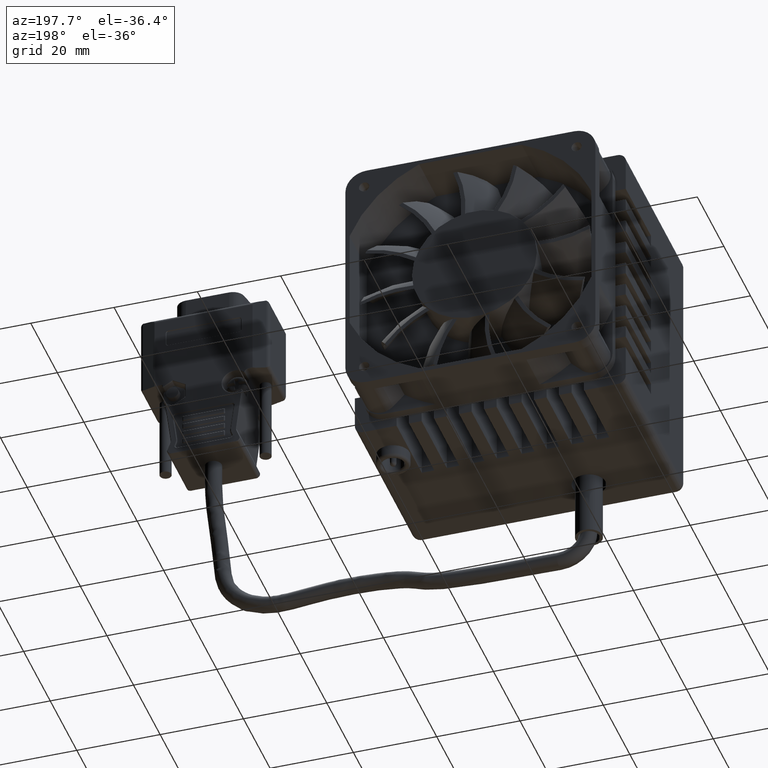
[diagram: clean part render]
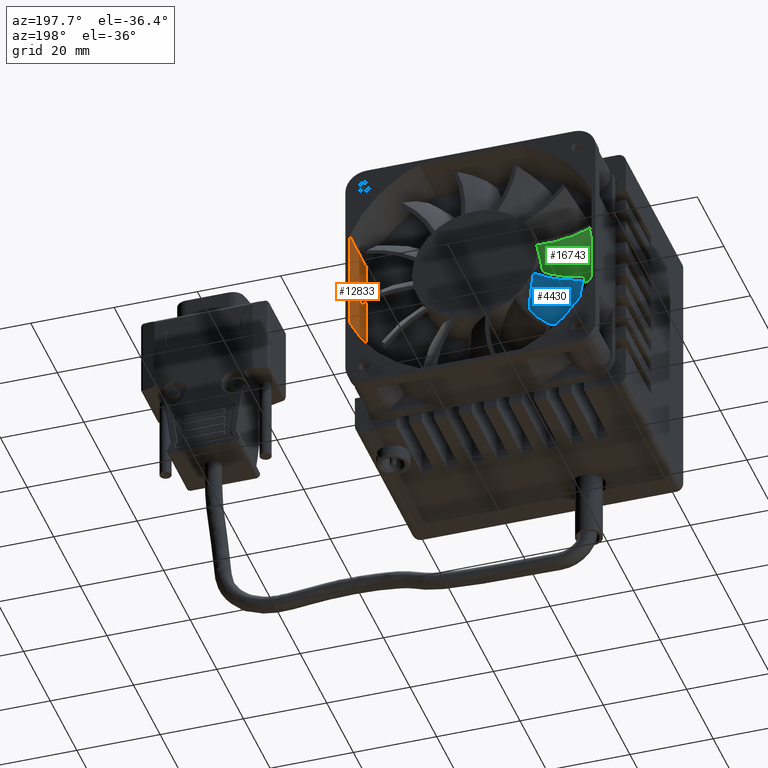
[diagram: same view with three faces highlighted in distinct colors, each labeled with its STEP entity id]
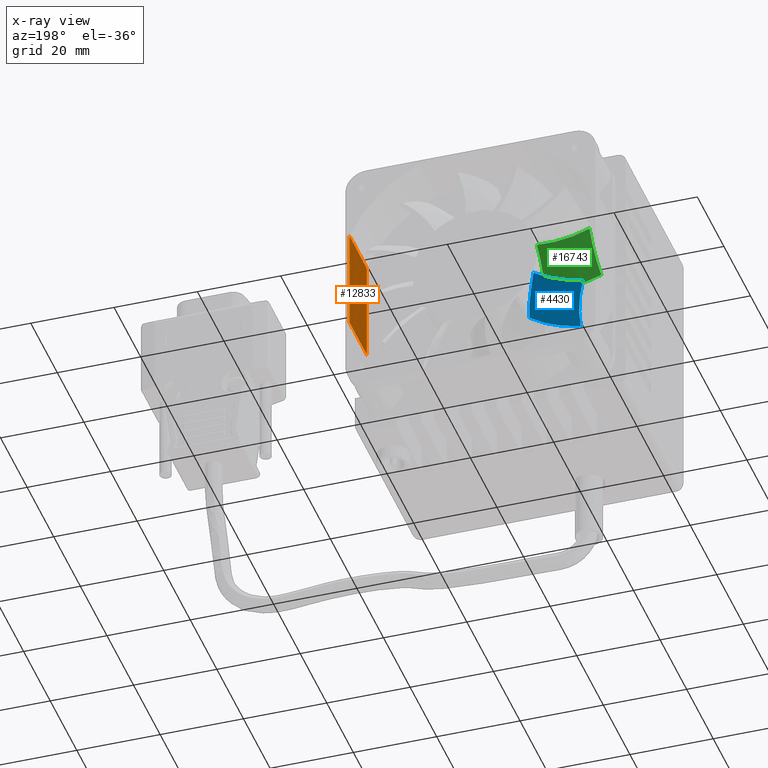
[diagram: x-ray of the same camera — body ghosted, the three highlighted faces saturated]
A machine part, auxiliary view with three faces highlighted in distinct colors.
The next image is the same camera in x-ray (body ghosted, the three faces saturated) — at least one of them is partly hidden behind the body in this view.
Their STEP definitions:

[orange] entity #12833 — the highlighted planar face has unit normal (1, 0, -0).
#2234 = DIRECTION ( 'NONE',  ( 0.000000000000000000, -2.775557561562889810E-17, 1.000000000000000000 ) ) ;
#2241 = CARTESIAN_POINT ( 'NONE',  ( 29.00000000000000000, 60.00000000000000000, 12.29837387625590139 ) ) ;
#4827 = VECTOR ( 'NONE', #2234, 1000.000000000000000 ) ;
#4889 = EDGE_CURVE ( 'NONE', #10188, #26576, #7857, .T. ) ;
#4916 = EDGE_CURVE ( 'NONE', #39277, #10188, #18177, .T. ) ;
#7132 = CARTESIAN_POINT ( 'NONE',  ( 29.00000000000000000, 47.00000000000000000, -12.29837387625590139 ) ) ;
#7745 = ORIENTED_EDGE ( 'NONE', *, *, #24353, .F. ) ;
#7857 = LINE ( 'NONE', #11643, #27728 ) ;
#8786 = AXIS2_PLACEMENT_3D ( 'NONE', #31613, #21723, #38102 ) ;
#10188 = VERTEX_POINT ( 'NONE', #7132 ) ;
#10791 = VERTEX_POINT ( 'NONE', #2241 ) ;
#11332 = CARTESIAN_POINT ( 'NONE',  ( 29.00000000000000000, 60.00000000000000000, -12.29837387625590139 ) ) ;
#11643 = CARTESIAN_POINT ( 'NONE',  ( 29.00000000000000000, 47.00000000000000000, 12.29837387625590139 ) ) ;
#12833 = ADVANCED_FACE ( 'NONE', ( #25271 ), #25072, .F. ) ;
#13945 = DIRECTION ( 'NONE',  ( 0.000000000000000000, 6.646060958014888712E-17, 1.000000000000000000 ) ) ;
#18177 = LINE ( 'NONE', #25102, #29713 ) ;
#19119 = CARTESIAN_POINT ( 'NONE',  ( 29.00000000000000000, 47.00000000000000000, 12.29837387625590139 ) ) ;
#19163 = LINE ( 'NONE', #25900, #35232 ) ;
#19996 = DIRECTION ( 'NONE',  ( 2.220446049250309876E-16, -1.000000000000000000, 0.000000000000000000 ) ) ;
#21723 = DIRECTION ( 'NONE',  ( 1.000000000000000000, 2.220446049250309876E-16, -1.475721979730089957E-32 ) ) ;
#22256 = ORIENTED_EDGE ( 'NONE', *, *, #4889, .T. ) ;
#24353 = EDGE_CURVE ( 'NONE', #39277, #10791, #31088, .T. ) ;
#25072 = PLANE ( 'NONE',  #8786 ) ;
#25102 = CARTESIAN_POINT ( 'NONE',  ( 29.00000000000000000, 57.00000000000000000, -12.29837387625590139 ) ) ;
#25271 = FACE_OUTER_BOUND ( 'NONE', #37989, .T. ) ;
#25900 = CARTESIAN_POINT ( 'NONE',  ( 29.00000000000000000, 57.00000000000000000, 12.29837387625590139 ) ) ;
#26576 = VERTEX_POINT ( 'NONE', #19119 ) ;
#27728 = VECTOR ( 'NONE', #13945, 1000.000000000000000 ) ;
#29713 = VECTOR ( 'NONE', #35196, 1000.000000000000000 ) ;
#31088 = LINE ( 'NONE', #37789, #4827 ) ;
#31613 = CARTESIAN_POINT ( 'NONE',  ( 29.00000000000000000, 57.00000000000000000, -12.29837387625590139 ) ) ;
#31783 = ORIENTED_EDGE ( 'NONE', *, *, #4916, .T. ) ;
#35061 = EDGE_CURVE ( 'NONE', #10791, #26576, #19163, .T. ) ;
#35196 = DIRECTION ( 'NONE',  ( 2.220446049250309876E-16, -1.000000000000000000, 0.000000000000000000 ) ) ;
#35232 = VECTOR ( 'NONE', #19996, 1000.000000000000000 ) ;
#36944 = ORIENTED_EDGE ( 'NONE', *, *, #35061, .F. ) ;
#37789 = CARTESIAN_POINT ( 'NONE',  ( 29.00000000000000000, 60.00000000000000000, 6.149186938127969348 ) ) ;
#37989 = EDGE_LOOP ( 'NONE', ( #31783, #22256, #36944, #7745 ) ) ;
#38102 = DIRECTION ( 'NONE',  ( -2.220446049250309876E-16, 1.000000000000000000, 0.000000000000000000 ) ) ;
#39277 = VERTEX_POINT ( 'NONE', #11332 ) ;

[blue] entity #4430 — the highlighted face is a freeform B-spline surface patch.
#1281 = VERTEX_POINT ( 'NONE', #33014 ) ;
#1388 = CARTESIAN_POINT ( 'NONE',  ( -25.90362675182870333, 56.50000000000000000, -10.04995973562640010 ) ) ;
#3703 = AXIS2_PLACEMENT_3D ( 'NONE', #8715, #11844, #37529 ) ;
#3913 = VERTEX_POINT ( 'NONE', #36377 ) ;
#4430 = ADVANCED_FACE ( 'NONE', ( #40341 ), #21886, .T. ) ;
#4537 = AXIS2_PLACEMENT_3D ( 'NONE', #18470, #11936, #31320 ) ;
#5526 = CARTESIAN_POINT ( 'NONE',  ( -10.81891745809418737, 49.70302678311158928, -10.39007611837635103 ) ) ;
#6136 = CARTESIAN_POINT ( 'NONE',  ( -12.35105718569538347, 53.45566147189899198, -8.517963290511673335 ) ) ;
#6574 = EDGE_CURVE ( 'NONE', #3913, #1281, #22722, .T. ) ;
#7845 = CARTESIAN_POINT ( 'NONE',  ( -10.22674461111059863, 47.49662868095440160, -10.97331739535129991 ) ) ;
#7912 = CARTESIAN_POINT ( 'NONE',  ( -15.01423451741018766, 47.49662868095442292, -14.89436358306179642 ) ) ;
#8142 = CARTESIAN_POINT ( 'NONE',  ( -23.32411655545710971, 53.31744203162614326, -14.51780246650948847 ) ) ;
#8695 = CARTESIAN_POINT ( 'NONE',  ( -10.64281860470331331, 49.13459146220787943, -10.57066214627633549 ) ) ;
#8715 = CARTESIAN_POINT ( 'NONE',  ( -26.44244620285289926, 47.49662868095440160, 11.19757734520400128 ) ) ;
#9303 = CARTESIAN_POINT ( 'NONE',  ( -11.15721905439110095, 50.69515337429724156, -10.02822977866138032 ) ) ;
#9520 = CARTESIAN_POINT ( 'NONE',  ( -11.64797290862967216, 51.92964279095511415, -9.454688437313377491 ) ) ;
#10582 = ORIENTED_EDGE ( 'NONE', *, *, #21730, .F. ) ;
#10621 = EDGE_LOOP ( 'NONE', ( #10582, #34161, #10954, #13376 ) ) ;
#10954 = ORIENTED_EDGE ( 'NONE', *, *, #19211, .F. ) ;
#11828 = CARTESIAN_POINT ( 'NONE',  ( -10.44686826374306854, 48.44288068759449573, -10.76554168322947547 ) ) ;
#11844 = DIRECTION ( 'NONE',  ( -2.581001553191860052E-16, 1.000000000000000000, 3.469446956190774698E-17 ) ) ;
#11936 = DIRECTION ( 'NONE',  ( -0.8660254043720247985, -4.875229299450969048E-16, -0.4999999989822708768 ) ) ;
#12441 = CARTESIAN_POINT ( 'NONE',  ( -13.40868758630918833, 55.44739452524281376, -6.761462255448687841 ) ) ;
#12868 = CARTESIAN_POINT ( 'NONE',  ( -12.88239981066010920, 54.48297961932029665, -7.684479900538225827 ) ) ;
#13376 = ORIENTED_EDGE ( 'NONE', *, *, #6574, .F. ) ;
#13670 = CARTESIAN_POINT ( 'NONE',  ( -29.86787286497930083, 56.50000000000000000, 17.13059037770990045 ) ) ;
#15201 = CARTESIAN_POINT ( 'NONE',  ( -12.83842308154368972, 54.40064882668014690, -7.757707765997188254 ) ) ;
#15241 = VERTEX_POINT ( 'NONE', #27017 ) ;
#17805 = CARTESIAN_POINT ( 'NONE',  ( -9.152988015652638865, 47.49662868095440160, -10.14655972571720000 ) ) ;
#18470 = CARTESIAN_POINT ( 'NONE',  ( -30.03575853549870089, 43.10338480173509623, -2.892897523315989705 ) ) ;
#18565 = CARTESIAN_POINT ( 'NONE',  ( -11.31633939219083906, 51.11472389558456086, -9.849206520709575585 ) ) ;
#18984 = CARTESIAN_POINT ( 'NONE',  ( -13.74055547785956755, 56.01231445383101715, -6.071102228919544430 ) ) ;
#19211 = EDGE_CURVE ( 'NONE', #1281, #15241, #19334, .T. ) ;
#19334 = CIRCLE ( 'NONE', #4537, 15.74062741312680380 ) ;
#20979 = CARTESIAN_POINT ( 'NONE',  ( -18.43966117953667805, 56.49999999999998579, -8.961350550555843952 ) ) ;
#21318 = B_SPLINE_CURVE_WITH_KNOTS ( 'NONE', 3,
 ( #7845, #40679, #11828, #8695, #34367, #5526, #31206, #23854, #41299, #34981, #9303, #18565, #9520, #28653, #22147, #6136, #22555, #32246, #15201, #12868, #31411, #37720, #12441, #18984, #31630 ),
 .UNSPECIFIED., .F., .F.,
 ( 4, 2, 2, 1, 2, 2, 2, 2, 2, 2, 2, 2, 4 ),
 ( 0.000000000000000000, 0.1249999999999988343, 0.1874999999999982514, 0.2187499999999971134, 0.2343749999999964473, 0.2499999999999958089, 0.3749999999999967248, 0.4999999999999976685, 0.6249999999999985567, 0.6874999999999997780, 0.7187500000000004441, 0.7500000000000009992, 1.000000000000000000 ),
 .UNSPECIFIED. ) ;
#21730 = EDGE_CURVE ( 'NONE', #32796, #3913, #21318, .T. ) ;
#21886 =( BOUNDED_SURFACE ( )  B_SPLINE_SURFACE ( 2, 2, ( 
 ( #27717, #20979, #1388 ),
 ( #23706, #36964, #8142 ),
 ( #17805, #7912, #23915 ) ),
 .UNSPECIFIED., .F., .F., .F. ) 
 B_SPLINE_SURFACE_WITH_KNOTS ( ( 3, 3 ),
 ( 3, 3 ),
 ( -8.961818565167199966E-17, 0.7351897659899490067 ),
 ( 2.942946659296869427E-17, 0.5360013537046279808 ),
 .UNSPECIFIED. ) 
 GEOMETRIC_REPRESENTATION_ITEM ( )  RATIONAL_B_SPLINE_SURFACE ( (
 ( 1.000000000000000000, 0.9643022521094869459, 1.000000000000000000),
 ( 0.9331943756288320069, 0.8998814380747889308, 0.9331943756288320069),
 ( 1.000000000000000000, 0.9643022521094869459, 1.000000000000000000) ) ) 
 REPRESENTATION_ITEM ( '' )  SURFACE ( )  );
#22147 = CARTESIAN_POINT ( 'NONE',  ( -12.17300009129076876, 53.09001648373278215, -8.769490418283902855 ) ) ;
#22555 = CARTESIAN_POINT ( 'NONE',  ( -12.61745266543172406, 53.97991440907790661, -8.113320300055663736 ) ) ;
#22722 = CIRCLE ( 'NONE', #25385, 27.46811882363289570 ) ;
#23373 = DIRECTION ( 'NONE',  ( 0.6294372868492471573, 2.526162766536882094E-16, -0.7770512865466850938 ) ) ;
#23706 = CARTESIAN_POINT ( 'NONE',  ( -9.998904481407445033, 53.31744203162614326, -8.681389424094357210 ) ) ;
#23854 = CARTESIAN_POINT ( 'NONE',  ( -10.93033296870476256, 50.04026760170090427, -10.27271120911245994 ) ) ;
#23915 = CARTESIAN_POINT ( 'NONE',  ( -22.47820008970230177, 47.49662868095440160, -15.98297276813229928 ) ) ;
#25385 = AXIS2_PLACEMENT_3D ( 'NONE', #13670, #35385, #23373 ) ;
#27017 = CARTESIAN_POINT ( 'NONE',  ( -22.47820008970230177, 47.49662868095440160, -15.98297276813229928 ) ) ;
#27717 = CARTESIAN_POINT ( 'NONE',  ( -12.57841467777909905, 56.50000000000000000, -4.213546693211250194 ) ) ;
#28653 = CARTESIAN_POINT ( 'NONE',  ( -11.82115697899586770, 52.32644044730646016, -9.238297521560744130 ) ) ;
#30692 = EDGE_CURVE ( 'NONE', #32796, #15241, #35323, .T. ) ;
#31206 = CARTESIAN_POINT ( 'NONE',  ( -10.87380551235722059, 49.87220901210520907, -10.33274143682012003 ) ) ;
#31320 = DIRECTION ( 'NONE',  ( 0.2625137915547098300, 0.8510852106881637846, -0.4546872258942999401 ) ) ;
#31411 = CARTESIAN_POINT ( 'NONE',  ( -12.97001648442476274, 54.64562332584474547, -7.535657145678904989 ) ) ;
#31630 = CARTESIAN_POINT ( 'NONE',  ( -14.02843196339910037, 56.50000000000000000, -5.310658777240550243 ) ) ;
#32246 = CARTESIAN_POINT ( 'NONE',  ( -12.70613012190943714, 54.15062963062582924, -7.973882701570924603 ) ) ;
#32796 = VERTEX_POINT ( 'NONE', #35556 ) ;
#33014 = CARTESIAN_POINT ( 'NONE',  ( -25.90362675182870333, 56.50000000000000000, -10.04995973562640010 ) ) ;
#34161 = ORIENTED_EDGE ( 'NONE', *, *, #30692, .T. ) ;
#34367 = CARTESIAN_POINT ( 'NONE',  ( -10.71142775023208316, 49.36316413926047630, -10.50123527945150137 ) ) ;
#34981 = CARTESIAN_POINT ( 'NONE',  ( -10.98815776204806660, 50.20951158004671555, -10.21083510395272498 ) ) ;
#35323 = CIRCLE ( 'NONE', #3703, 27.46811882363289570 ) ;
#35385 = DIRECTION ( 'NONE',  ( -2.581001553191860052E-16, 1.000000000000000000, 3.469446956190774698E-17 ) ) ;
#35556 = CARTESIAN_POINT ( 'NONE',  ( -10.22674461111059863, 47.49662868095440160, -10.97331739535129991 ) ) ;
#36377 = CARTESIAN_POINT ( 'NONE',  ( -14.02843196339910037, 56.50000000000000000, -5.310658777240550243 ) ) ;
#36964 = CARTESIAN_POINT ( 'NONE',  ( -15.86015098316500094, 53.31744203162610773, -13.42919328143899804 ) ) ;
#37529 = DIRECTION ( 'NONE',  ( 0.6294372868492471573, 2.526162766536882094E-16, -0.7770512865466850938 ) ) ;
#37720 = CARTESIAN_POINT ( 'NONE',  ( -13.01312787580561192, 54.72497092535947871, -7.460996979550032826 ) ) ;
#40341 = FACE_OUTER_BOUND ( 'NONE', #10621, .T. ) ;
#40679 = CARTESIAN_POINT ( 'NONE',  ( -10.32943486935478106, 47.97374984657815844, -10.87761369816701240 ) ) ;
#41299 = CARTESIAN_POINT ( 'NONE',  ( -10.96837334343969417, 50.15205696378738054, -10.23208486045247056 ) ) ;

[green] entity #16743 — the highlighted face is a freeform B-spline surface patch.
#348 =( BOUNDED_SURFACE ( )  B_SPLINE_SURFACE ( 2, 2, ( 
 ( #23365, #17478, #39363 ),
 ( #1480, #27164, #11160 ),
 ( #37660, #22089, #2112 ) ),
 .UNSPECIFIED., .F., .F., .T. ) 
 B_SPLINE_SURFACE_WITH_KNOTS ( ( 3, 3 ),
 ( 3, 3 ),
 ( -8.961818565167199966E-17, 0.7351897659899490067 ),
 ( 2.942946659296869427E-17, 0.5360013537046279808 ),
 .UNSPECIFIED. ) 
 GEOMETRIC_REPRESENTATION_ITEM ( )  RATIONAL_B_SPLINE_SURFACE ( (
 ( 1.000000000000000000, 0.9643022521094869459, 1.000000000000000000),
 ( 0.9331943756288320069, 0.8998814380747889308, 0.9331943756288320069),
 ( 1.000000000000000000, 0.9643022521094869459, 1.000000000000000000) ) ) 
 REPRESENTATION_ITEM ( '' )  SURFACE ( )  );
#494 = CARTESIAN_POINT ( 'NONE',  ( -14.99999999671726414, 54.21094687739455509, -0.5125823570546157448 ) ) ;
#716 = CARTESIAN_POINT ( 'NONE',  ( -14.34327932994479937, 47.49662868095440160, -4.389799319237490671 ) ) ;
#1257 = FACE_OUTER_BOUND ( 'NONE', #3059, .T. ) ;
#1480 = CARTESIAN_POINT ( 'NONE',  ( -13.00000000355210439, 53.31744203162614326, -2.518851537652099903 ) ) ;
#2112 = CARTESIAN_POINT ( 'NONE',  ( -27.45817869370970143, 47.49662868095440160, -2.602560393892719759 ) ) ;
#2915 = CARTESIAN_POINT ( 'NONE',  ( -14.98722064220019945, 55.27002006331817086, 0.6704385447630404338 ) ) ;
#3059 = EDGE_LOOP ( 'NONE', ( #21016, #31916, #17699, #22438, #29790 ) ) ;
#3112 = CARTESIAN_POINT ( 'NONE',  ( -14.92282480604539607, 55.95958285163673196, 1.572492430568707134 ) ) ;
#3857 = CARTESIAN_POINT ( 'NONE',  ( -14.56556055570138852, 49.71306796722628718, -3.584703023952398038 ) ) ;
#4368 = CIRCLE ( 'NONE', #9684, 27.46811882363291701 ) ;
#6276 = CARTESIAN_POINT ( 'NONE',  ( -14.99911569517979437, 54.85474552400179249, 0.1889587335536704604 ) ) ;
#7569 = CARTESIAN_POINT ( 'NONE',  ( -14.80430784361789875, 56.50000000000000000, 2.415050573257960131 ) ) ;
#8773 = VERTEX_POINT ( 'NONE', #14428 ) ;
#9288 = VERTEX_POINT ( 'NONE', #41315 ) ;
#9438 = EDGE_CURVE ( 'NONE', #38639, #8773, #39063, .T. ) ;
#9583 = CARTESIAN_POINT ( 'NONE',  ( -14.58406283524134217, 49.87851169838342713, -3.508801042162078332 ) ) ;
#9684 = AXIS2_PLACEMENT_3D ( 'NONE', #27432, #11435, #34702 ) ;
#9928 = DIRECTION ( 'NONE',  ( 0.1565830369951229095, 0.000000000000000000, -0.9876647976542364260 ) ) ;
#10482 = CIRCLE ( 'NONE', #15875, 15.74062741312680913 ) ;
#11160 = CARTESIAN_POINT ( 'NONE',  ( -27.45817869132389433, 53.31744203162614326, -0.9107274589394458442 ) ) ;
#11435 = DIRECTION ( 'NONE',  ( -2.636779683484750235E-16, 1.000000000000000000, 5.551115128996939154E-17 ) ) ;
#12809 = CARTESIAN_POINT ( 'NONE',  ( -14.87392174345642815, 56.24067055867300979, 1.988315988559856029 ) ) ;
#12934 = CARTESIAN_POINT ( 'NONE',  ( -14.61187132406241496, 50.12506243984297782, -3.390407024676995729 ) ) ;
#13079 = CARTESIAN_POINT ( 'NONE',  ( -17.30104146222419814, 56.50000000000000000, 29.76946288547810227 ) ) ;
#14428 = CARTESIAN_POINT ( 'NONE',  ( -27.45817868404860107, 56.50000000000000000, 4.248292944304779439 ) ) ;
#14434 = CARTESIAN_POINT ( 'NONE',  ( -27.45817867239430043, 43.10338480173509623, 12.51255652846620059 ) ) ;
#15097 = B_SPLINE_CURVE_WITH_KNOTS ( 'NONE', 3,
 ( #38698, #34920, #6276, #19122, #2915, #31974, #3112, #12809, #25660 ),
 .UNSPECIFIED., .F., .F.,
 ( 4, 2, 1, 2, 4 ),
 ( 0.7341232185150603495, 0.7673578162006782222, 0.8005924138862960948, 0.8670616092575307299, 1.000000000000000000 ),
 .UNSPECIFIED. ) ;
#15875 = AXIS2_PLACEMENT_3D ( 'NONE', #14434, #27730, #17616 ) ;
#16704 = CARTESIAN_POINT ( 'NONE',  ( -14.63931734729950129, 50.36699916241558128, -3.269869414244940931 ) ) ;
#16743 = ADVANCED_FACE ( 'NONE', ( #1257 ), #348, .T. ) ;
#16953 = EDGE_CURVE ( 'NONE', #21008, #38639, #15097, .T. ) ;
#17478 = CARTESIAN_POINT ( 'NONE',  ( -20.44989029359147636, 56.49999999999998579, 1.459073365575728864 ) ) ;
#17616 = DIRECTION ( 'NONE',  ( -7.403978572953092633E-10, 0.8510852106881635626, -0.5250275841780926989 ) ) ;
#17699 = ORIENTED_EDGE ( 'NONE', *, *, #33230, .F. ) ;
#19122 = CARTESIAN_POINT ( 'NONE',  ( -14.99547875623103188, 55.02248720965652495, 0.3805179520056564124 ) ) ;
#19472 = CARTESIAN_POINT ( 'NONE',  ( -14.88795108272038625, 52.62249578277872075, -1.883984330987972688 ) ) ;
#21008 = VERTEX_POINT ( 'NONE', #26815 ) ;
#21016 = ORIENTED_EDGE ( 'NONE', *, *, #40917, .F. ) ;
#22089 = CARTESIAN_POINT ( 'NONE',  ( -20.44989030325260870, 47.49662868095442292, -5.391779972621779216 ) ) ;
#22438 = ORIENTED_EDGE ( 'NONE', *, *, #9438, .F. ) ;
#22623 = CARTESIAN_POINT ( 'NONE',  ( -14.97381808023969008, 53.70446574355376868, -0.9926008768735838927 ) ) ;
#23365 = CARTESIAN_POINT ( 'NONE',  ( -12.99999999627680047, 56.50000000000000000, 2.640168865592120273 ) ) ;
#23592 = AXIS2_PLACEMENT_3D ( 'NONE', #13079, #31846, #9928 ) ;
#25358 = CARTESIAN_POINT ( 'NONE',  ( -14.99998519848079148, 54.68292359437744210, 4.351036772957555520E-07 ) ) ;
#25660 = CARTESIAN_POINT ( 'NONE',  ( -14.80430784361789875, 56.50000000000000000, 2.415050573257960131 ) ) ;
#26201 = CARTESIAN_POINT ( 'NONE',  ( -14.40359566253539114, 48.19716013220999429, -4.192721060394744903 ) ) ;
#26815 = CARTESIAN_POINT ( 'NONE',  ( -14.99998519848079148, 54.68292359437744210, 4.351036772957555520E-07 ) ) ;
#27164 = CARTESIAN_POINT ( 'NONE',  ( -20.44989030086668791, 53.31744203162610773, -3.699947037668500638 ) ) ;
#27432 = CARTESIAN_POINT ( 'NONE',  ( -17.30104147188530206, 47.49662868095440160, 22.91860954728059951 ) ) ;
#27679 = EDGE_CURVE ( 'NONE', #29059, #9288, #4368, .T. ) ;
#27730 = DIRECTION ( 'NONE',  ( -1.000000000000000000, -4.473049557471315303E-16, 1.410206897686028077E-09 ) ) ;
#29059 = VERTEX_POINT ( 'NONE', #39475 ) ;
#29153 = CARTESIAN_POINT ( 'NONE',  ( -14.47391697156282397, 48.88046646052021060, -3.949193417408761508 ) ) ;
#29566 = CARTESIAN_POINT ( 'NONE',  ( -14.68411012951148642, 50.76067505292851934, -3.068091873273790515 ) ) ;
#29790 = ORIENTED_EDGE ( 'NONE', *, *, #16953, .F. ) ;
#31846 = DIRECTION ( 'NONE',  ( -2.636779683484750235E-16, 1.000000000000000000, 5.551115128996939154E-17 ) ) ;
#31895 = CARTESIAN_POINT ( 'NONE',  ( -14.62134706153907970, 50.20871291815647908, -3.349308658093655300 ) ) ;
#31916 = ORIENTED_EDGE ( 'NONE', *, *, #27679, .T. ) ;
#31974 = CARTESIAN_POINT ( 'NONE',  ( -14.97010212897528270, 55.50531389251835890, 0.9679361585765059450 ) ) ;
#33230 = EDGE_CURVE ( 'NONE', #8773, #9288, #10482, .T. ) ;
#34702 = DIRECTION ( 'NONE',  ( 0.1565830369951229095, 0.000000000000000000, -0.9876647976542364260 ) ) ;
#34920 = CARTESIAN_POINT ( 'NONE',  ( -15.00000000059446492, 54.76839197098793477, 0.09282064462338929234 ) ) ;
#36959 = B_SPLINE_CURVE_WITH_KNOTS ( 'NONE', 3,
 ( #716, #26201, #29153, #3857, #9583, #12934, #31895, #16704, #29566, #39044, #38417, #19472, #22623, #494, #25358 ),
 .UNSPECIFIED., .F., .F.,
 ( 4, 2, 2, 2, 1, 2, 2, 4 ),
 ( 0.000000000000000000, 0.1835308046287631722, 0.2294135057859535420, 0.2523548563645487408, 0.2752962069431439396, 0.3670616092575277878, 0.5505924138862939854, 0.7341232185150603495 ),
 .UNSPECIFIED. ) ;
#37660 = CARTESIAN_POINT ( 'NONE',  ( -13.00000000593800031, 47.49662868095440160, -4.210684472605380257 ) ) ;
#38417 = CARTESIAN_POINT ( 'NONE',  ( -14.82784344180090130, 52.04491652508656330, -2.296878473890386463 ) ) ;
#38639 = VERTEX_POINT ( 'NONE', #7569 ) ;
#38698 = CARTESIAN_POINT ( 'NONE',  ( -14.99998519848079148, 54.68292359437744210, 4.351036772957555520E-07 ) ) ;
#39044 = CARTESIAN_POINT ( 'NONE',  ( -14.72788528129029118, 51.14415234276740563, -2.850358417067528460 ) ) ;
#39063 = CIRCLE ( 'NONE', #23592, 27.46811882363291701 ) ;
#39363 = CARTESIAN_POINT ( 'NONE',  ( -27.45817868404860107, 56.50000000000000000, 4.248292944304779439 ) ) ;
#39475 = CARTESIAN_POINT ( 'NONE',  ( -14.34327932994479937, 47.49662868095440160, -4.389799319237490671 ) ) ;
#40917 = EDGE_CURVE ( 'NONE', #29059, #21008, #36959, .T. ) ;
#41315 = CARTESIAN_POINT ( 'NONE',  ( -27.45817869370970143, 47.49662868095440160, -2.602560393892719759 ) ) ;